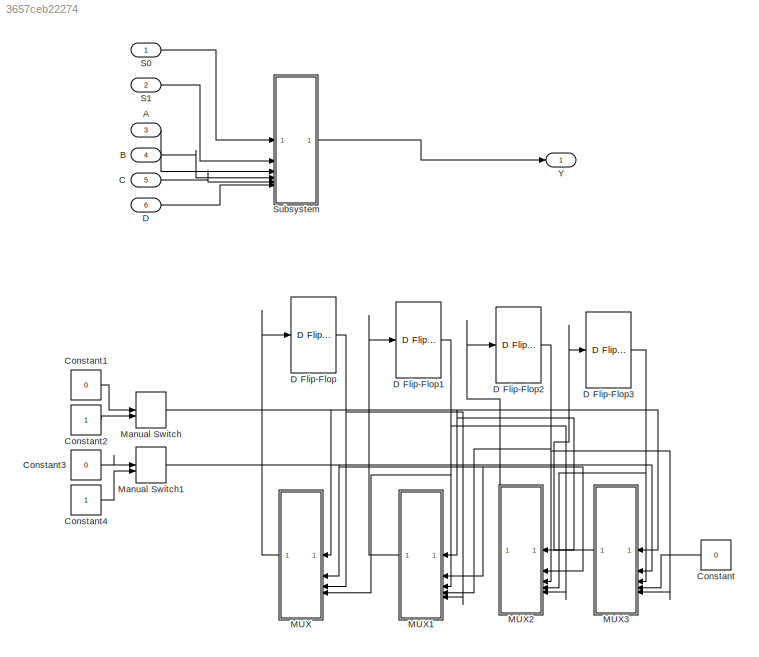
MODEL slx_3657ceb22274
KIND model
CONFIG AbsTol = auto
CONFIG EnableMultiTasking = off
CONFIG FixedStep = auto
CONFIG MaxStep = auto
CONFIG MinStep = auto
CONFIG RelTol = 1e-3
CONFIG SampleTimeConstraint = Unconstrained
CONFIG SolverName = VariableStepAuto
CONFIG StartTime = 0.0
CONFIG StopTime = 10.0
BLOCK [Inport] A
  Port = 3
BLOCK [Inport] B
  Port = 4
BLOCK [Inport] C
  Port = 5
BLOCK [Constant] Constant
  NameLocation = top
  Value = 0
BLOCK [Constant] Constant1
  Value = 0
BLOCK [Constant] Constant2
BLOCK [Constant] Constant3
  Value = 0
BLOCK [Constant] Constant4
BLOCK [Inport] D
  Port = 6
BLOCK [Reference] D Flip-Flop  REF=simulink_extras/Flip Flops/D Flip-Flop
  SourceBlock = simulink_extras/Flip Flops/D Flip-Flop
  SourceType = DFlipFlop
BLOCK [Reference] D Flip-Flop1  REF=simulink_extras/Flip Flops/D Flip-Flop
  SourceBlock = simulink_extras/Flip Flops/D Flip-Flop
  SourceType = DFlipFlop
BLOCK [Reference] D Flip-Flop2  REF=simulink_extras/Flip Flops/D Flip-Flop
  SourceBlock = simulink_extras/Flip Flops/D Flip-Flop
  SourceType = DFlipFlop
BLOCK [Reference] D Flip-Flop3  REF=simulink_extras/Flip Flops/D Flip-Flop
  SourceBlock = simulink_extras/Flip Flops/D Flip-Flop
  SourceType = DFlipFlop
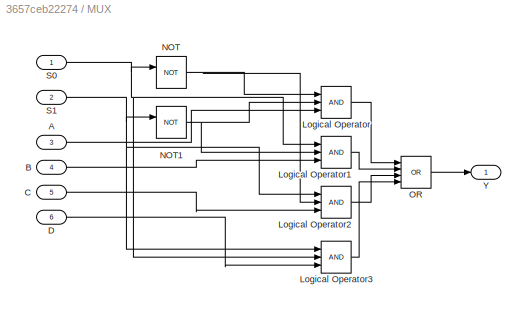
BLOCK [SubSystem] MUX
  NameLocation = top
BLOCK [Inport] MUX/A
  Port = 3
BLOCK [Inport] MUX/B
  Port = 4
BLOCK [Inport] MUX/C
  Port = 5
BLOCK [Inport] MUX/D
  Port = 6
BLOCK [Logic] MUX/Logical Operator
  AllPortsSameDT = off
  Inputs = 3
  OutDataTypeStr = boolean
BLOCK [Logic] MUX/Logical Operator1
  AllPortsSameDT = off
  Inputs = 3
  OutDataTypeStr = boolean
BLOCK [Logic] MUX/Logical Operator2
  AllPortsSameDT = off
  Inputs = 3
  OutDataTypeStr = boolean
BLOCK [Logic] MUX/Logical Operator3
  AllPortsSameDT = off
  Inputs = 3
  OutDataTypeStr = boolean
BLOCK [Logic] MUX/NOT
  AllPortsSameDT = off
  IconShape = distinctive
  Operator = NOT
  OutDataTypeStr = boolean
BLOCK [Logic] MUX/NOT1
  AllPortsSameDT = off
  IconShape = distinctive
  Operator = NOT
  OutDataTypeStr = boolean
BLOCK [Logic] MUX/OR
  AllPortsSameDT = off
  IconShape = distinctive
  Inputs = 4
  Operator = OR
  OutDataTypeStr = boolean
BLOCK [Inport] MUX/S0
BLOCK [Inport] MUX/S1
  Port = 2
BLOCK [Outport] MUX/Y
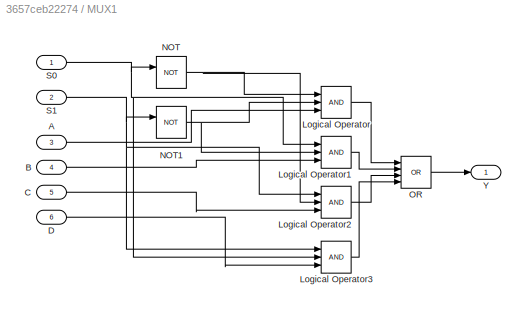
BLOCK [SubSystem] MUX1
  NameLocation = top
BLOCK [Inport] MUX1/A
  Port = 3
BLOCK [Inport] MUX1/B
  Port = 4
BLOCK [Inport] MUX1/C
  Port = 5
BLOCK [Inport] MUX1/D
  Port = 6
BLOCK [Logic] MUX1/Logical Operator
  AllPortsSameDT = off
  Inputs = 3
  OutDataTypeStr = boolean
BLOCK [Logic] MUX1/Logical Operator1
  AllPortsSameDT = off
  Inputs = 3
  OutDataTypeStr = boolean
BLOCK [Logic] MUX1/Logical Operator2
  AllPortsSameDT = off
  Inputs = 3
  OutDataTypeStr = boolean
BLOCK [Logic] MUX1/Logical Operator3
  AllPortsSameDT = off
  Inputs = 3
  OutDataTypeStr = boolean
BLOCK [Logic] MUX1/NOT
  AllPortsSameDT = off
  IconShape = distinctive
  Operator = NOT
  OutDataTypeStr = boolean
BLOCK [Logic] MUX1/NOT1
  AllPortsSameDT = off
  IconShape = distinctive
  Operator = NOT
  OutDataTypeStr = boolean
BLOCK [Logic] MUX1/OR
  AllPortsSameDT = off
  IconShape = distinctive
  Inputs = 4
  Operator = OR
  OutDataTypeStr = boolean
BLOCK [Inport] MUX1/S0
BLOCK [Inport] MUX1/S1
  Port = 2
BLOCK [Outport] MUX1/Y
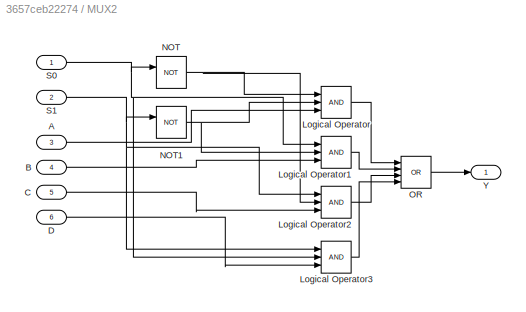
BLOCK [SubSystem] MUX2
  NameLocation = top
BLOCK [Inport] MUX2/A
  Port = 3
BLOCK [Inport] MUX2/B
  Port = 4
BLOCK [Inport] MUX2/C
  Port = 5
BLOCK [Inport] MUX2/D
  Port = 6
BLOCK [Logic] MUX2/Logical Operator
  AllPortsSameDT = off
  Inputs = 3
  OutDataTypeStr = boolean
BLOCK [Logic] MUX2/Logical Operator1
  AllPortsSameDT = off
  Inputs = 3
  OutDataTypeStr = boolean
BLOCK [Logic] MUX2/Logical Operator2
  AllPortsSameDT = off
  Inputs = 3
  OutDataTypeStr = boolean
BLOCK [Logic] MUX2/Logical Operator3
  AllPortsSameDT = off
  Inputs = 3
  OutDataTypeStr = boolean
BLOCK [Logic] MUX2/NOT
  AllPortsSameDT = off
  IconShape = distinctive
  Operator = NOT
  OutDataTypeStr = boolean
BLOCK [Logic] MUX2/NOT1
  AllPortsSameDT = off
  IconShape = distinctive
  Operator = NOT
  OutDataTypeStr = boolean
BLOCK [Logic] MUX2/OR
  AllPortsSameDT = off
  IconShape = distinctive
  Inputs = 4
  Operator = OR
  OutDataTypeStr = boolean
BLOCK [Inport] MUX2/S0
BLOCK [Inport] MUX2/S1
  Port = 2
BLOCK [Outport] MUX2/Y
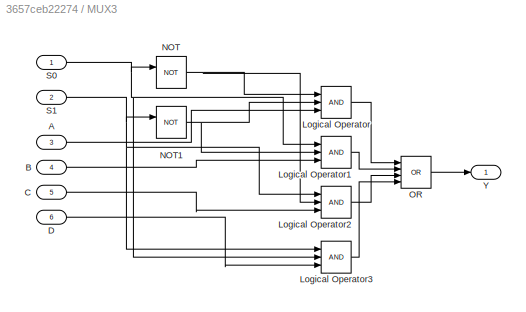
BLOCK [SubSystem] MUX3
  NameLocation = top
BLOCK [Inport] MUX3/A
  Port = 3
BLOCK [Inport] MUX3/B
  Port = 4
BLOCK [Inport] MUX3/C
  Port = 5
BLOCK [Inport] MUX3/D
  Port = 6
BLOCK [Logic] MUX3/Logical Operator
  AllPortsSameDT = off
  Inputs = 3
  OutDataTypeStr = boolean
BLOCK [Logic] MUX3/Logical Operator1
  AllPortsSameDT = off
  Inputs = 3
  OutDataTypeStr = boolean
BLOCK [Logic] MUX3/Logical Operator2
  AllPortsSameDT = off
  Inputs = 3
  OutDataTypeStr = boolean
BLOCK [Logic] MUX3/Logical Operator3
  AllPortsSameDT = off
  Inputs = 3
  OutDataTypeStr = boolean
BLOCK [Logic] MUX3/NOT
  AllPortsSameDT = off
  IconShape = distinctive
  Operator = NOT
  OutDataTypeStr = boolean
BLOCK [Logic] MUX3/NOT1
  AllPortsSameDT = off
  IconShape = distinctive
  Operator = NOT
  OutDataTypeStr = boolean
BLOCK [Logic] MUX3/OR
  AllPortsSameDT = off
  IconShape = distinctive
  Inputs = 4
  Operator = OR
  OutDataTypeStr = boolean
BLOCK [Inport] MUX3/S0
BLOCK [Inport] MUX3/S1
  Port = 2
BLOCK [Outport] MUX3/Y
BLOCK [ManualSwitch] Manual Switch
BLOCK [ManualSwitch] Manual Switch1
BLOCK [Inport] S0
BLOCK [Inport] S1
  Port = 2
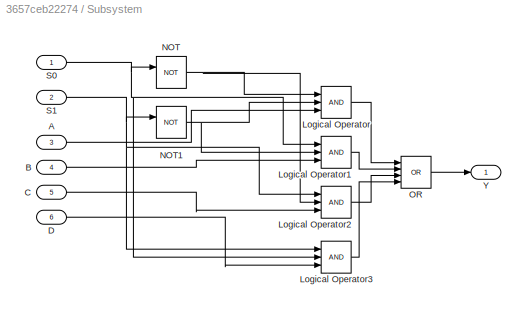
BLOCK [SubSystem] Subsystem
BLOCK [Inport] Subsystem/A
  Port = 3
BLOCK [Inport] Subsystem/B
  Port = 4
BLOCK [Inport] Subsystem/C
  Port = 5
BLOCK [Inport] Subsystem/D
  Port = 6
BLOCK [Logic] Subsystem/Logical Operator
  AllPortsSameDT = off
  Inputs = 3
  OutDataTypeStr = boolean
BLOCK [Logic] Subsystem/Logical Operator1
  AllPortsSameDT = off
  Inputs = 3
  OutDataTypeStr = boolean
BLOCK [Logic] Subsystem/Logical Operator2
  AllPortsSameDT = off
  Inputs = 3
  OutDataTypeStr = boolean
BLOCK [Logic] Subsystem/Logical Operator3
  AllPortsSameDT = off
  Inputs = 3
  OutDataTypeStr = boolean
BLOCK [Logic] Subsystem/NOT
  AllPortsSameDT = off
  IconShape = distinctive
  Operator = NOT
  OutDataTypeStr = boolean
BLOCK [Logic] Subsystem/NOT1
  AllPortsSameDT = off
  IconShape = distinctive
  Operator = NOT
  OutDataTypeStr = boolean
BLOCK [Logic] Subsystem/OR
  AllPortsSameDT = off
  IconShape = distinctive
  Inputs = 4
  Operator = OR
  OutDataTypeStr = boolean
BLOCK [Inport] Subsystem/S0
BLOCK [Inport] Subsystem/S1
  Port = 2
BLOCK [Outport] Subsystem/Y
BLOCK [Outport] Y
LINE A:1 -> Subsystem:3
LINE B:1 -> Subsystem:4
LINE C:1 -> Subsystem:5
LINE Constant1:1 -> Manual Switch:1
LINE Constant2:1 -> Manual Switch:2
LINE Constant3:1 -> Manual Switch1:1
LINE Constant4:1 -> Manual Switch1:2
LINE Constant:1 -> MUX3:4
NET D Flip-Flop1:1 -> MUX1:3, MUX2:5, MUX:4
NET D Flip-Flop2:1 -> MUX1:4, MUX2:3, MUX3:5
NET D Flip-Flop3:1 -> MUX2:4, MUX3:3
NET D Flip-Flop:1 -> MUX1:5, MUX:3
LINE D:1 -> Subsystem:6
LINE MUX/A:1 -> MUX/Logical Operator:3
LINE MUX/B:1 -> MUX/Logical Operator1:3
LINE MUX/C:1 -> MUX/Logical Operator2:3
LINE MUX/D:1 -> MUX/Logical Operator3:3
LINE MUX/Logical Operator1:1 -> MUX/OR:2
LINE MUX/Logical Operator2:1 -> MUX/OR:3
LINE MUX/Logical Operator3:1 -> MUX/OR:4
LINE MUX/Logical Operator:1 -> MUX/OR:1
NET MUX/NOT1:1 -> MUX/Logical Operator1:2, MUX/Logical Operator:2
NET MUX/NOT:1 -> MUX/Logical Operator2:2, MUX/Logical Operator:1
LINE MUX/OR:1 -> MUX/Y:1
NET MUX/S0:1 -> MUX/Logical Operator1:1, MUX/Logical Operator3:2, MUX/NOT:1
NET MUX/S1:1 -> MUX/Logical Operator2:1, MUX/Logical Operator3:1, MUX/NOT1:1
LINE MUX1/A:1 -> MUX1/Logical Operator:3
LINE MUX1/B:1 -> MUX1/Logical Operator1:3
LINE MUX1/C:1 -> MUX1/Logical Operator2:3
LINE MUX1/D:1 -> MUX1/Logical Operator3:3
LINE MUX1/Logical Operator1:1 -> MUX1/OR:2
LINE MUX1/Logical Operator2:1 -> MUX1/OR:3
LINE MUX1/Logical Operator3:1 -> MUX1/OR:4
LINE MUX1/Logical Operator:1 -> MUX1/OR:1
NET MUX1/NOT1:1 -> MUX1/Logical Operator1:2, MUX1/Logical Operator:2
NET MUX1/NOT:1 -> MUX1/Logical Operator2:2, MUX1/Logical Operator:1
LINE MUX1/OR:1 -> MUX1/Y:1
NET MUX1/S0:1 -> MUX1/Logical Operator1:1, MUX1/Logical Operator3:2, MUX1/NOT:1
NET MUX1/S1:1 -> MUX1/Logical Operator2:1, MUX1/Logical Operator3:1, MUX1/NOT1:1
LINE MUX1:1 -> D Flip-Flop1:1
LINE MUX2/A:1 -> MUX2/Logical Operator:3
LINE MUX2/B:1 -> MUX2/Logical Operator1:3
LINE MUX2/C:1 -> MUX2/Logical Operator2:3
LINE MUX2/D:1 -> MUX2/Logical Operator3:3
LINE MUX2/Logical Operator1:1 -> MUX2/OR:2
LINE MUX2/Logical Operator2:1 -> MUX2/OR:3
LINE MUX2/Logical Operator3:1 -> MUX2/OR:4
LINE MUX2/Logical Operator:1 -> MUX2/OR:1
NET MUX2/NOT1:1 -> MUX2/Logical Operator1:2, MUX2/Logical Operator:2
NET MUX2/NOT:1 -> MUX2/Logical Operator2:2, MUX2/Logical Operator:1
LINE MUX2/OR:1 -> MUX2/Y:1
NET MUX2/S0:1 -> MUX2/Logical Operator1:1, MUX2/Logical Operator3:2, MUX2/NOT:1
NET MUX2/S1:1 -> MUX2/Logical Operator2:1, MUX2/Logical Operator3:1, MUX2/NOT1:1
LINE MUX2:1 -> D Flip-Flop2:1
LINE MUX3/A:1 -> MUX3/Logical Operator:3
LINE MUX3/B:1 -> MUX3/Logical Operator1:3
LINE MUX3/C:1 -> MUX3/Logical Operator2:3
LINE MUX3/D:1 -> MUX3/Logical Operator3:3
LINE MUX3/Logical Operator1:1 -> MUX3/OR:2
LINE MUX3/Logical Operator2:1 -> MUX3/OR:3
LINE MUX3/Logical Operator3:1 -> MUX3/OR:4
LINE MUX3/Logical Operator:1 -> MUX3/OR:1
NET MUX3/NOT1:1 -> MUX3/Logical Operator1:2, MUX3/Logical Operator:2
NET MUX3/NOT:1 -> MUX3/Logical Operator2:2, MUX3/Logical Operator:1
LINE MUX3/OR:1 -> MUX3/Y:1
NET MUX3/S0:1 -> MUX3/Logical Operator1:1, MUX3/Logical Operator3:2, MUX3/NOT:1
NET MUX3/S1:1 -> MUX3/Logical Operator2:1, MUX3/Logical Operator3:1, MUX3/NOT1:1
LINE MUX3:1 -> D Flip-Flop3:1
LINE MUX:1 -> D Flip-Flop:1
NET Manual Switch1:1 -> MUX1:2, MUX2:2, MUX3:2, MUX:2
NET Manual Switch:1 -> MUX1:1, MUX2:1, MUX3:1, MUX:1
LINE S0:1 -> Subsystem:1
LINE S1:1 -> Subsystem:2
LINE Subsystem/A:1 -> Subsystem/Logical Operator:3
LINE Subsystem/B:1 -> Subsystem/Logical Operator1:3
LINE Subsystem/C:1 -> Subsystem/Logical Operator2:3
LINE Subsystem/D:1 -> Subsystem/Logical Operator3:3
LINE Subsystem/Logical Operator1:1 -> Subsystem/OR:2
LINE Subsystem/Logical Operator2:1 -> Subsystem/OR:3
LINE Subsystem/Logical Operator3:1 -> Subsystem/OR:4
LINE Subsystem/Logical Operator:1 -> Subsystem/OR:1
NET Subsystem/NOT1:1 -> Subsystem/Logical Operator1:2, Subsystem/Logical Operator:2
NET Subsystem/NOT:1 -> Subsystem/Logical Operator2:2, Subsystem/Logical Operator:1
LINE Subsystem/OR:1 -> Subsystem/Y:1
NET Subsystem/S0:1 -> Subsystem/Logical Operator1:1, Subsystem/Logical Operator3:2, Subsystem/NOT:1
NET Subsystem/S1:1 -> Subsystem/Logical Operator2:1, Subsystem/Logical Operator3:1, Subsystem/NOT1:1
LINE Subsystem:1 -> Y:1
note: NET lines group one-source signal fan-out (src -> all destinations, sorted); 1:1 wires keep LINE
